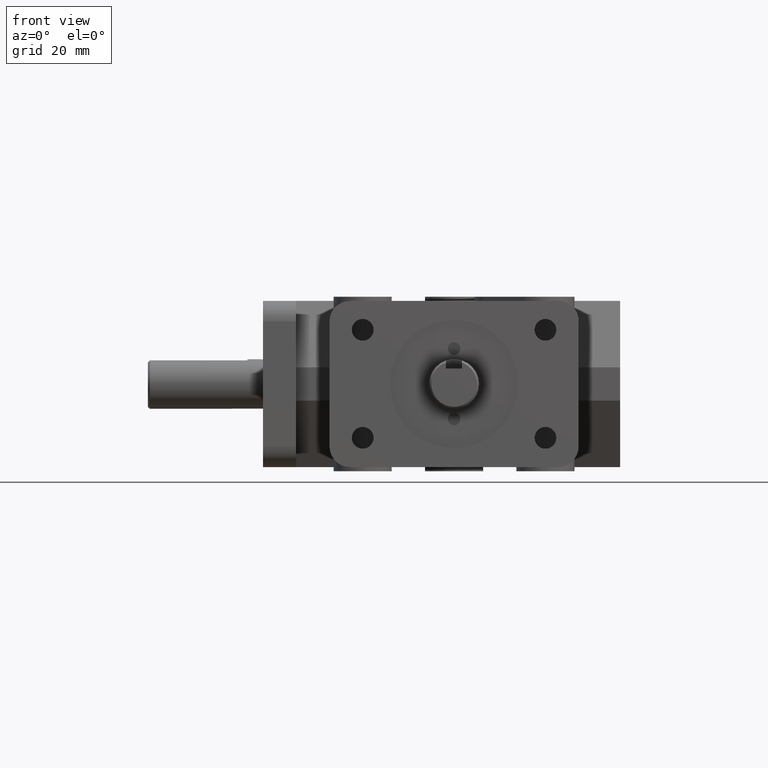
[diagram: clean part render]
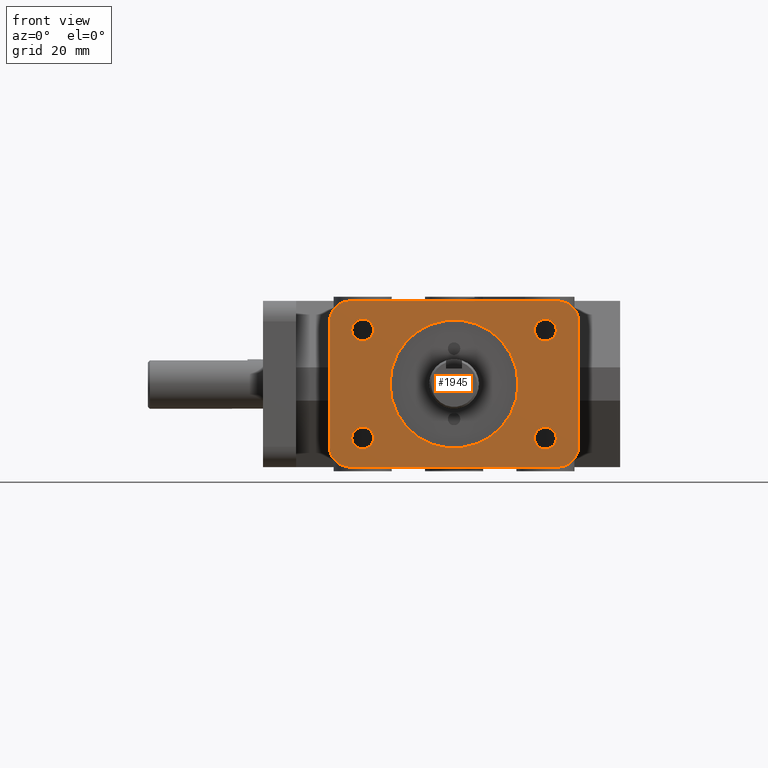
[diagram: same view with one face highlighted and labeled with its STEP entity id]
A machine part, front view. The second image highlights one B-rep face of the part: STEP entity #1945.
In plain terms, the highlighted planar face has unit normal (0, -1, 0).
Its self-contained STEP definition (entity closure, byte-faithful):
#23=FACE_BOUND('',#282,.T.);
#24=FACE_BOUND('',#283,.T.);
#25=FACE_BOUND('',#284,.T.);
#26=FACE_BOUND('',#285,.T.);
#27=FACE_BOUND('',#286,.T.);
#70=PLANE('',#2113);
#163=FACE_OUTER_BOUND('',#281,.T.);
#281=EDGE_LOOP('',(#1465,#1466,#1467,#1468,#1469,#1470,#1471,#1472));
#282=EDGE_LOOP('',(#1473));
#283=EDGE_LOOP('',(#1474));
#284=EDGE_LOOP('',(#1475));
#285=EDGE_LOOP('',(#1476));
#286=EDGE_LOOP('',(#1477));
#431=LINE('',#3026,#622);
#432=LINE('',#3027,#623);
#433=LINE('',#3028,#624);
#434=LINE('',#3029,#625);
#622=VECTOR('',#2437,1.);
#623=VECTOR('',#2438,1.);
#624=VECTOR('',#2439,1.);
#625=VECTOR('',#2440,1.);
#766=CIRCLE('',#2036,24.4602);
#794=CIRCLE('',#2090,7.874);
#796=CIRCLE('',#2093,7.874);
#798=CIRCLE('',#2096,7.874);
#800=CIRCLE('',#2099,7.874);
#810=CIRCLE('',#2114,4.15925);
#811=CIRCLE('',#2115,4.15925);
#812=CIRCLE('',#2116,4.15925);
#813=CIRCLE('',#2117,4.15925);
#851=VERTEX_POINT('',#2815);
#893=VERTEX_POINT('',#2954);
#894=VERTEX_POINT('',#2955);
#897=VERTEX_POINT('',#2963);
#898=VERTEX_POINT('',#2964);
#901=VERTEX_POINT('',#2972);
#902=VERTEX_POINT('',#2973);
#905=VERTEX_POINT('',#2981);
#906=VERTEX_POINT('',#2982);
#925=VERTEX_POINT('',#3030);
#926=VERTEX_POINT('',#3032);
#927=VERTEX_POINT('',#3034);
#928=VERTEX_POINT('',#3036);
#1036=EDGE_CURVE('',#851,#851,#766,.T.);
#1099=EDGE_CURVE('',#893,#894,#794,.T.);
#1103=EDGE_CURVE('',#897,#898,#796,.T.);
#1107=EDGE_CURVE('',#901,#902,#798,.T.);
#1111=EDGE_CURVE('',#905,#906,#800,.T.);
#1131=EDGE_CURVE('',#893,#906,#431,.T.);
#1132=EDGE_CURVE('',#905,#902,#432,.T.);
#1133=EDGE_CURVE('',#901,#898,#433,.T.);
#1134=EDGE_CURVE('',#894,#897,#434,.T.);
#1135=EDGE_CURVE('',#925,#925,#810,.T.);
#1136=EDGE_CURVE('',#926,#926,#811,.T.);
#1137=EDGE_CURVE('',#927,#927,#812,.T.);
#1138=EDGE_CURVE('',#928,#928,#813,.T.);
#1465=ORIENTED_EDGE('',*,*,#1099,.F.);
#1466=ORIENTED_EDGE('',*,*,#1131,.T.);
#1467=ORIENTED_EDGE('',*,*,#1111,.F.);
#1468=ORIENTED_EDGE('',*,*,#1132,.T.);
#1469=ORIENTED_EDGE('',*,*,#1107,.F.);
#1470=ORIENTED_EDGE('',*,*,#1133,.T.);
#1471=ORIENTED_EDGE('',*,*,#1103,.F.);
#1472=ORIENTED_EDGE('',*,*,#1134,.F.);
#1473=ORIENTED_EDGE('',*,*,#1036,.T.);
#1474=ORIENTED_EDGE('',*,*,#1135,.T.);
#1475=ORIENTED_EDGE('',*,*,#1136,.T.);
#1476=ORIENTED_EDGE('',*,*,#1137,.T.);
#1477=ORIENTED_EDGE('',*,*,#1138,.T.);
#1945=ADVANCED_FACE('',(#163,#23,#24,#25,#26,#27),#70,.T.);
#2036=AXIS2_PLACEMENT_3D('',#2816,#2234,#2235);
#2090=AXIS2_PLACEMENT_3D('',#2956,#2373,#2374);
#2093=AXIS2_PLACEMENT_3D('',#2965,#2381,#2382);
#2096=AXIS2_PLACEMENT_3D('',#2974,#2389,#2390);
#2099=AXIS2_PLACEMENT_3D('',#2983,#2397,#2398);
#2113=AXIS2_PLACEMENT_3D('',#3025,#2435,#2436);
#2114=AXIS2_PLACEMENT_3D('',#3031,#2441,#2442);
#2115=AXIS2_PLACEMENT_3D('',#3033,#2443,#2444);
#2116=AXIS2_PLACEMENT_3D('',#3035,#2445,#2446);
#2117=AXIS2_PLACEMENT_3D('',#3037,#2447,#2448);
#2234=DIRECTION('center_axis',(0.,1.,0.));
#2235=DIRECTION('ref_axis',(1.,0.,0.));
#2373=DIRECTION('center_axis',(0.,1.,0.));
#2374=DIRECTION('ref_axis',(0.707106781186547,0.,0.707106781186547));
#2381=DIRECTION('center_axis',(0.,1.,0.));
#2382=DIRECTION('ref_axis',(0.707106781186547,0.,-0.707106781186547));
#2389=DIRECTION('center_axis',(0.,1.,0.));
#2390=DIRECTION('ref_axis',(-0.707106781186547,0.,-0.707106781186547));
#2397=DIRECTION('center_axis',(0.,1.,0.));
#2398=DIRECTION('ref_axis',(-0.707106781186547,0.,0.707106781186547));
#2435=DIRECTION('center_axis',(0.,-1.,0.));
#2436=DIRECTION('ref_axis',(0.,0.,1.));
#2437=DIRECTION('',(-1.,0.,0.));
#2438=DIRECTION('',(0.,0.,-1.));
#2439=DIRECTION('',(1.,0.,0.));
#2440=DIRECTION('',(0.,0.,-1.));
#2441=DIRECTION('center_axis',(0.,1.,0.));
#2442=DIRECTION('ref_axis',(1.,0.,0.));
#2443=DIRECTION('center_axis',(0.,1.,0.));
#2444=DIRECTION('ref_axis',(1.,0.,0.));
#2445=DIRECTION('center_axis',(0.,1.,0.));
#2446=DIRECTION('ref_axis',(1.,0.,0.));
#2447=DIRECTION('center_axis',(0.,1.,0.));
#2448=DIRECTION('ref_axis',(1.,0.,0.));
#2815=CARTESIAN_POINT('',(-24.4602,0.,2.99551056365041E-15));
#2816=CARTESIAN_POINT('Origin',(0.,0.,0.));
#2954=CARTESIAN_POINT('',(39.751,0.,31.75));
#2955=CARTESIAN_POINT('',(47.625,0.,23.876));
#2956=CARTESIAN_POINT('Origin',(39.751,0.,23.876));
#2963=CARTESIAN_POINT('',(47.625,0.,-23.876));
#2964=CARTESIAN_POINT('',(39.751,0.,-31.75));
#2965=CARTESIAN_POINT('Origin',(39.751,0.,-23.876));
#2972=CARTESIAN_POINT('',(-39.751,0.,-31.75));
#2973=CARTESIAN_POINT('',(-47.625,0.,-23.876));
#2974=CARTESIAN_POINT('Origin',(-39.751,0.,-23.876));
#2981=CARTESIAN_POINT('',(-47.625,0.,23.876));
#2982=CARTESIAN_POINT('',(-39.751,0.,31.75));
#2983=CARTESIAN_POINT('Origin',(-39.751,0.,23.876));
#3025=CARTESIAN_POINT('Origin',(-47.625,0.,0.));
#3026=CARTESIAN_POINT('',(-47.625,0.,31.75));
#3027=CARTESIAN_POINT('',(-47.625,0.,0.));
#3028=CARTESIAN_POINT('',(-47.625,0.,-31.75));
#3029=CARTESIAN_POINT('',(47.625,0.,0.));
#3030=CARTESIAN_POINT('',(-39.08425,0.,20.6375));
#3031=CARTESIAN_POINT('Origin',(-34.925,0.,20.6375));
#3032=CARTESIAN_POINT('',(-39.08425,0.,-20.6375));
#3033=CARTESIAN_POINT('Origin',(-34.925,0.,-20.6375));
#3034=CARTESIAN_POINT('',(30.76575,0.,20.6375));
#3035=CARTESIAN_POINT('Origin',(34.925,0.,20.6375));
#3036=CARTESIAN_POINT('',(30.76575,0.,-20.6375));
#3037=CARTESIAN_POINT('Origin',(34.925,0.,-20.6375));